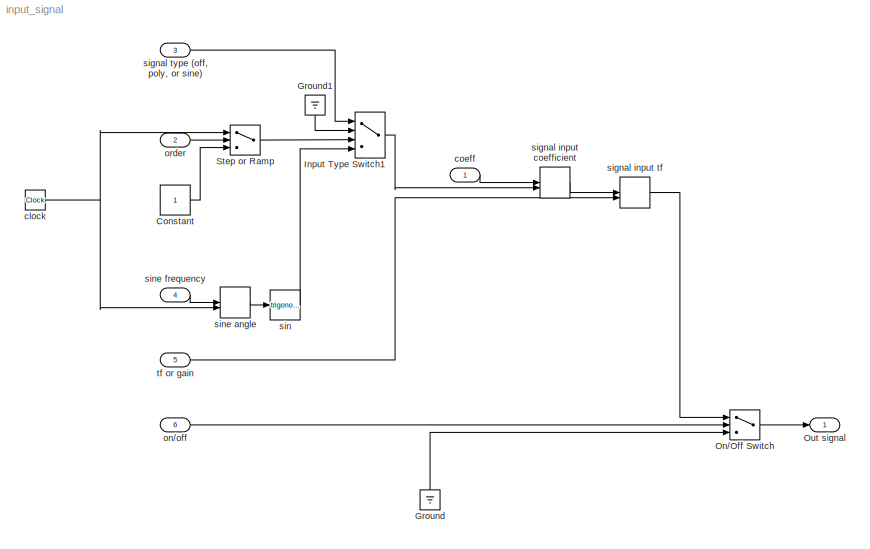
MODEL input_signal
KIND model
BLOCK [Constant] Constant
  OutDataType = fixdt(1, 16)
  OutScaling = 2^0
  SID = 27
BLOCK [Ground] Ground
  SID = 3
BLOCK [Ground] Ground1
  SID = 30
BLOCK [MultiPortSwitch] Input Type Switch1
  InputSameDT = off
  OutDataType = fixdt(1, 16)
  OutScaling = 2^0
  Ports = [4, 1]
  SID = 28
  SaturateOnIntegerOverflow = off
  zeroidx = on
BLOCK [Switch] On//Off Switch
  InputSameDT = off
  SID = 8
  SaturateOnIntegerOverflow = off
  Threshold = 1
BLOCK [Outport] Out signal
  IconDisplay = Port number
  OutDataType = fixdt(1, 16)
  OutScaling = 2^0
  SID = 13
BLOCK [Switch] Step or Ramp
  Criteria = u2 ~= 0
  InputSameDT = off
  SID = 21
  SaturateOnIntegerOverflow = off
  Threshold = 1
BLOCK [Clock] clock
  Decimation = 10
  SID = 25
BLOCK [Inport] coeff
  IconDisplay = Port number
  OutDataType = fixdt(1, 16)
  OutScaling = 2^0
  SID = 9
BLOCK [Inport] on//off
  IconDisplay = Port number
  OutDataType = fixdt(1, 16)
  OutScaling = 2^0
  Port = 6
  SID = 12
BLOCK [Inport] order
  IconDisplay = Port number
  OutDataType = fixdt(1, 16)
  OutScaling = 2^0
  Port = 2
  SID = 10
BLOCK [DotProduct] signal input coefficient
  OutDataType = fixdt(1, 16)
  OutDataTypeStr = Inherit: Inherit via internal rule
  OutScaling = 2^-10
  OutputDataTypeScalingMode = Inherit via internal rule
  SID = 26
BLOCK [DotProduct] signal input tf
  OutDataType = fixdt(1, 16)
  OutDataTypeStr = Inherit: Inherit via internal rule
  OutScaling = 2^-10
  OutputDataTypeScalingMode = Inherit via internal rule
  SID = 33
BLOCK [Inport] signal type (off, poly, or sine)
  IconDisplay = Port number
  OutDataType = fixdt(1, 16)
  OutScaling = 2^0
  Port = 3
  SID = 11
BLOCK [Trigonometry] sin
  Ports = [1, 1]
  SID = 15
BLOCK [DotProduct] sine angle
  OutDataType = fixdt(1, 16)
  OutDataTypeStr = Inherit: Inherit via internal rule
  OutScaling = 2^-10
  OutputDataTypeScalingMode = Inherit via internal rule
  SID = 20
BLOCK [Inport] sine frequency
  IconDisplay = Port number
  OutDataType = fixdt(1, 16)
  OutScaling = 2^0
  Port = 4
  SID = 19
BLOCK [Inport] tf or gain
  IconDisplay = Port number
  OutDataType = fixdt(1, 16)
  OutScaling = 2^0
  Port = 5
  SID = 32
LINE Constant:1 -> Step or Ramp:3
LINE Ground1:1 -> Input Type Switch1:2
LINE Ground:1 -> On//Off Switch:3
LINE Input Type Switch1:1 -> signal input coefficient:2
LINE On//Off Switch:1 -> Out signal:1
LINE Step or Ramp:1 -> Input Type Switch1:3
NET clock:1 -> Step or Ramp:1, sine angle:2
LINE coeff:1 -> signal input coefficient:1
LINE on//off:1 -> On//Off Switch:2
LINE order:1 -> Step or Ramp:2
LINE signal input coefficient:1 -> signal input tf:1
LINE signal input tf:1 -> On//Off Switch:1
LINE signal type (off, poly, or sine):1 -> Input Type Switch1:1
LINE sin:1 -> Input Type Switch1:4
LINE sine angle:1 -> sin:1
LINE sine frequency:1 -> sine angle:1
LINE tf or gain:1 -> signal input tf:2
note: NET lines group one-source signal fan-out (src -> all destinations, sorted); 1:1 wires keep LINE
